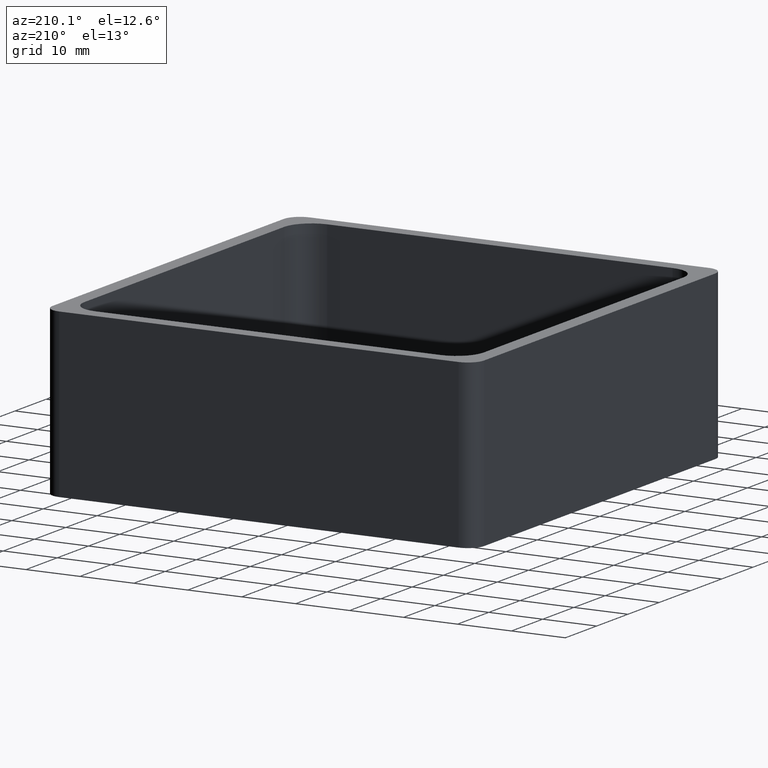
[diagram: clean part render]
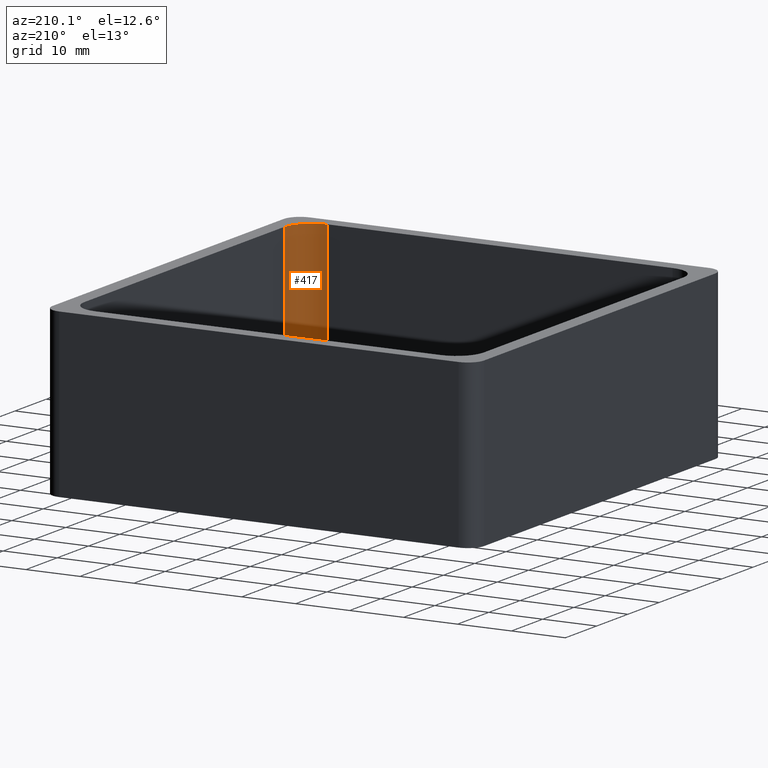
[diagram: same view with one face highlighted and labeled with its STEP entity id]
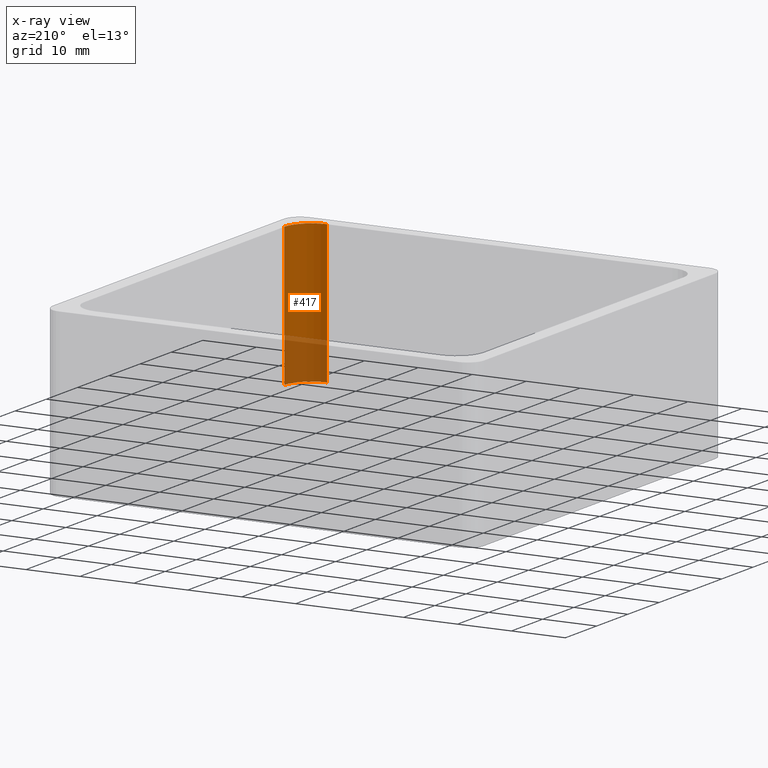
[diagram: x-ray of the same camera — body ghosted, the highlighted face saturated]
A machine part, auxiliary view. The second image highlights one B-rep face of the part: STEP entity #417.
The next image is the same camera in x-ray: the body ghosted, the highlighted face saturated — about 28% of this face is hidden behind the body in this view.
In plain terms, the highlighted cylindrical surface (edge-blend (fillet) strip) has radius 5 mm, axis along (0, 0, -1).
Its self-contained STEP definition (entity closure, byte-faithful):
#35=FACE_OUTER_BOUND('',#59,.T.);
#59=EDGE_LOOP('',(#295,#296,#297,#298));
#86=LINE('',#621,#130);
#88=LINE('',#627,#132);
#130=VECTOR('',#494,26.);
#132=VECTOR('',#500,26.);
#173=CIRCLE('',#446,4.99999999999999);
#174=CIRCLE('',#447,4.99999999999999);
#191=VERTEX_POINT('',#618);
#192=VERTEX_POINT('',#620);
#193=VERTEX_POINT('',#624);
#194=VERTEX_POINT('',#626);
#232=EDGE_CURVE('',#191,#192,#86,.T.);
#234=EDGE_CURVE('',#193,#191,#173,.T.);
#235=EDGE_CURVE('',#193,#194,#88,.T.);
#236=EDGE_CURVE('',#194,#192,#174,.T.);
#295=ORIENTED_EDGE('',*,*,#234,.F.);
#296=ORIENTED_EDGE('',*,*,#235,.T.);
#297=ORIENTED_EDGE('',*,*,#236,.T.);
#298=ORIENTED_EDGE('',*,*,#232,.F.);
#408=CYLINDRICAL_SURFACE('',#445,4.99999999999999);
#417=ADVANCED_FACE('',(#35),#408,.F.);
#445=AXIS2_PLACEMENT_3D('',#623,#496,#497);
#446=AXIS2_PLACEMENT_3D('',#625,#498,#499);
#447=AXIS2_PLACEMENT_3D('',#628,#501,#502);
#494=DIRECTION('',(0.,0.,-1.));
#496=DIRECTION('center_axis',(0.,0.,-1.));
#497=DIRECTION('ref_axis',(-1.77635683940025E-15,-1.,0.));
#498=DIRECTION('center_axis',(0.,0.,-1.));
#499=DIRECTION('ref_axis',(-1.77635683940025E-15,-1.,0.));
#500=DIRECTION('',(0.,0.,-1.));
#501=DIRECTION('center_axis',(0.,0.,-1.));
#502=DIRECTION('ref_axis',(-1.77635683940025E-15,-1.,0.));
#618=CARTESIAN_POINT('',(32.,-37.,30.5));
#620=CARTESIAN_POINT('',(32.,-37.,4.5));
#621=CARTESIAN_POINT('',(32.,-37.,30.5));
#623=CARTESIAN_POINT('Origin',(32.,-32.,30.5));
#624=CARTESIAN_POINT('',(37.,-32.,30.5));
#625=CARTESIAN_POINT('Origin',(32.,-32.,30.5));
#626=CARTESIAN_POINT('',(37.,-32.,4.5));
#627=CARTESIAN_POINT('',(37.,-32.,30.5));
#628=CARTESIAN_POINT('Origin',(32.,-32.,4.5));